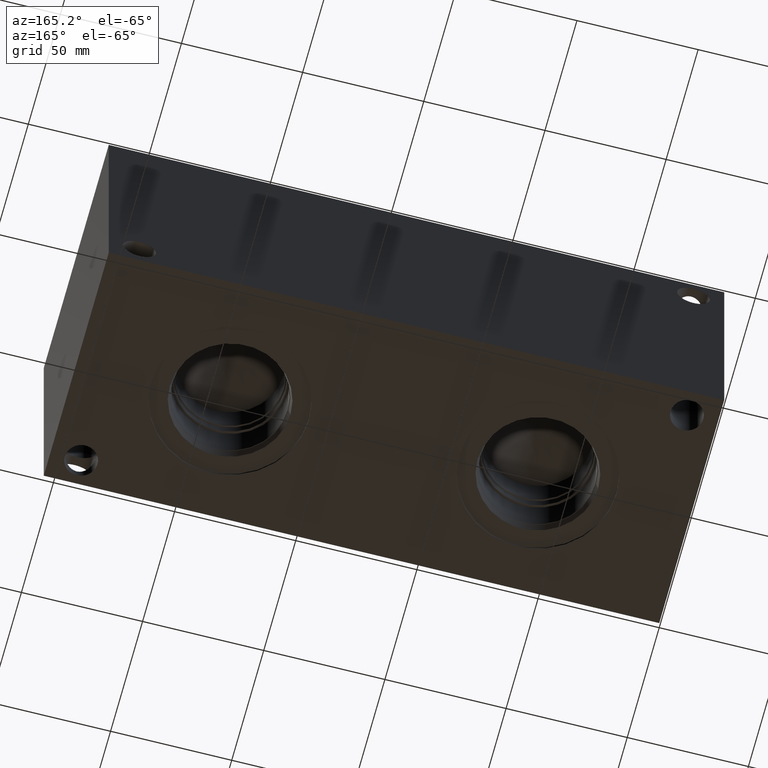
[diagram: clean part render]
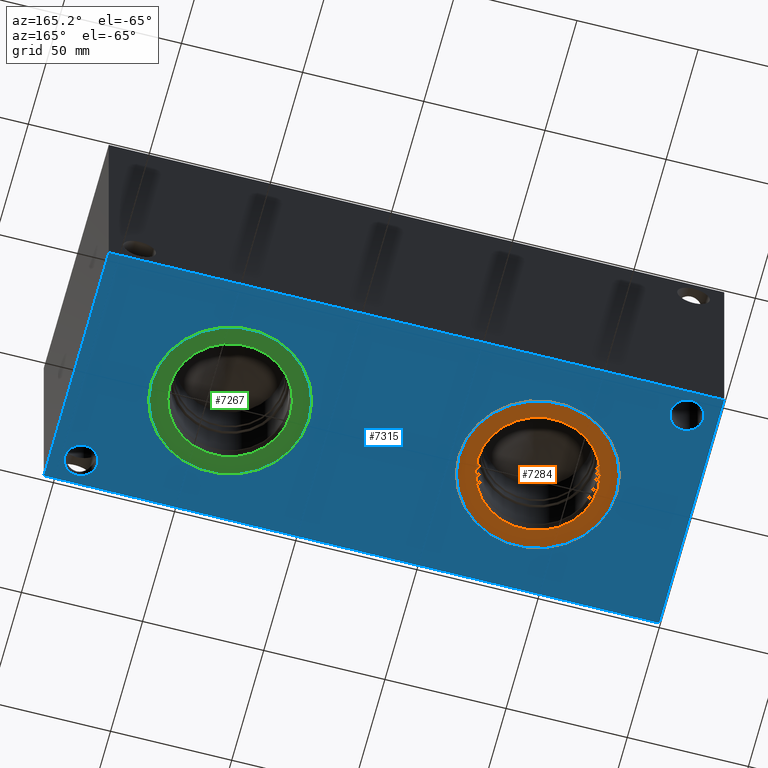
[diagram: same view with three faces highlighted in distinct colors, each labeled with its STEP entity id]
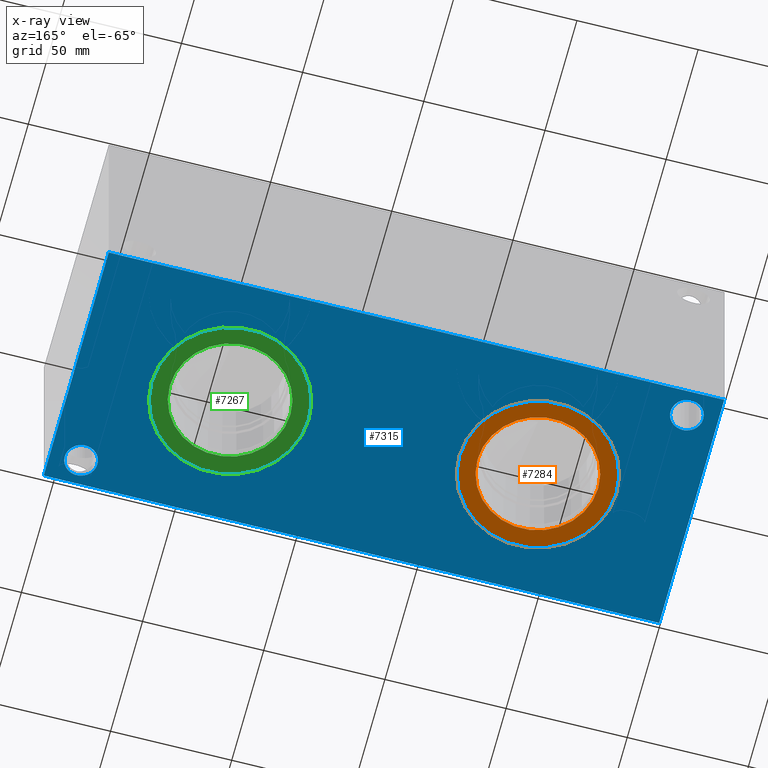
[diagram: x-ray of the same camera — body ghosted, the three highlighted faces saturated]
A machine part, auxiliary view with three faces highlighted in distinct colors.
The next image is the same camera in x-ray (body ghosted, the three faces saturated) — at least one of them is partly hidden behind the body in this view.
Their STEP definitions:

[orange] entity #7284 — the highlighted planar face has unit normal (0, 0, 1).
#112=CIRCLE('',#7627,32.5628);
#113=CIRCLE('',#7628,32.5628);
#114=CIRCLE('',#7630,24.9047);
#115=CIRCLE('',#7631,24.9047);
#188=FACE_BOUND('',#1229,.T.);
#824=FACE_OUTER_BOUND('',#1228,.T.);
#1228=EDGE_LOOP('',(#6246,#6247));
#1229=EDGE_LOOP('',(#6248,#6249));
#3341=VERTEX_POINT('',#12301);
#3342=VERTEX_POINT('',#12303);
#3343=VERTEX_POINT('',#12307);
#3344=VERTEX_POINT('',#12308);
#4325=EDGE_CURVE('',#3341,#3342,#112,.T.);
#4326=EDGE_CURVE('',#3342,#3341,#113,.T.);
#4327=EDGE_CURVE('',#3343,#3344,#114,.T.);
#4328=EDGE_CURVE('',#3344,#3343,#115,.T.);
#6246=ORIENTED_EDGE('',*,*,#4326,.F.);
#6247=ORIENTED_EDGE('',*,*,#4325,.F.);
#6248=ORIENTED_EDGE('',*,*,#4327,.T.);
#6249=ORIENTED_EDGE('',*,*,#4328,.T.);
#6630=PLANE('',#7629);
#7284=ADVANCED_FACE('',(#824,#188),#6630,.F.);
#7627=AXIS2_PLACEMENT_3D('',#12304,#8989,#8990);
#7628=AXIS2_PLACEMENT_3D('',#12305,#8991,#8992);
#7629=AXIS2_PLACEMENT_3D('',#12306,#8993,#8994);
#7630=AXIS2_PLACEMENT_3D('',#12309,#8995,#8996);
#7631=AXIS2_PLACEMENT_3D('',#12310,#8997,#8998);
#8989=DIRECTION('center_axis',(0.,0.,1.));
#8990=DIRECTION('ref_axis',(1.,0.,0.));
#8991=DIRECTION('center_axis',(0.,0.,1.));
#8992=DIRECTION('ref_axis',(1.,0.,0.));
#8993=DIRECTION('center_axis',(0.,0.,1.));
#8994=DIRECTION('ref_axis',(1.,0.,0.));
#8995=DIRECTION('center_axis',(0.,0.,1.));
#8996=DIRECTION('ref_axis',(1.,0.,0.));
#8997=DIRECTION('center_axis',(0.,0.,1.));
#8998=DIRECTION('ref_axis',(1.,0.,0.));
#12301=CARTESIAN_POINT('',(30.9372,50.8,0.7874));
#12303=CARTESIAN_POINT('',(96.0628,50.8,0.7874));
#12304=CARTESIAN_POINT('Origin',(63.5,50.8,0.7874));
#12305=CARTESIAN_POINT('Origin',(63.5,50.8,0.7874));
#12306=CARTESIAN_POINT('Origin',(88.4047,50.8,0.7874));
#12307=CARTESIAN_POINT('',(88.4047,50.8,0.7874));
#12308=CARTESIAN_POINT('',(38.5953,50.8,0.787400000000002));
#12309=CARTESIAN_POINT('Origin',(63.5,50.8,0.7874));
#12310=CARTESIAN_POINT('Origin',(63.5,50.8,0.7874));

[blue] entity #7315 — the highlighted planar face has unit normal (0, 0, 1).
#80=CIRCLE('',#7576,6.7437);
#81=CIRCLE('',#7578,6.7437);
#82=CIRCLE('',#7580,32.5628);
#83=CIRCLE('',#7581,32.5628);
#110=CIRCLE('',#7625,32.5628);
#111=CIRCLE('',#7626,32.5628);
#197=FACE_BOUND('',#1269,.T.);
#198=FACE_BOUND('',#1270,.T.);
#199=FACE_BOUND('',#1271,.T.);
#200=FACE_BOUND('',#1272,.T.);
#855=FACE_OUTER_BOUND('',#1268,.T.);
#1268=EDGE_LOOP('',(#6400,#6401,#6402,#6403));
#1269=EDGE_LOOP('',(#6404));
#1270=EDGE_LOOP('',(#6405));
#1271=EDGE_LOOP('',(#6406,#6407));
#1272=EDGE_LOOP('',(#6408,#6409));
#1986=LINE('',#12438,#2707);
#1989=LINE('',#12443,#2710);
#1991=LINE('',#12447,#2712);
#1993=LINE('',#12450,#2714);
#2707=VECTOR('',#9148,10.);
#2710=VECTOR('',#9153,10.);
#2712=VECTOR('',#9157,10.);
#2714=VECTOR('',#9161,10.);
#3307=VERTEX_POINT('',#12200);
#3308=VERTEX_POINT('',#12204);
#3309=VERTEX_POINT('',#12208);
#3310=VERTEX_POINT('',#12209);
#3339=VERTEX_POINT('',#12297);
#3340=VERTEX_POINT('',#12298);
#3385=VERTEX_POINT('',#12436);
#3386=VERTEX_POINT('',#12437);
#3387=VERTEX_POINT('',#12442);
#3388=VERTEX_POINT('',#12446);
#4277=EDGE_CURVE('',#3307,#3307,#80,.T.);
#4279=EDGE_CURVE('',#3308,#3308,#81,.T.);
#4280=EDGE_CURVE('',#3309,#3310,#82,.T.);
#4281=EDGE_CURVE('',#3310,#3309,#83,.T.);
#4322=EDGE_CURVE('',#3339,#3340,#110,.T.);
#4323=EDGE_CURVE('',#3340,#3339,#111,.T.);
#4388=EDGE_CURVE('',#3385,#3386,#1986,.T.);
#4391=EDGE_CURVE('',#3387,#3385,#1989,.T.);
#4393=EDGE_CURVE('',#3388,#3387,#1991,.T.);
#4395=EDGE_CURVE('',#3386,#3388,#1993,.T.);
#6400=ORIENTED_EDGE('',*,*,#4395,.F.);
#6401=ORIENTED_EDGE('',*,*,#4388,.F.);
#6402=ORIENTED_EDGE('',*,*,#4391,.F.);
#6403=ORIENTED_EDGE('',*,*,#4393,.F.);
#6404=ORIENTED_EDGE('',*,*,#4277,.T.);
#6405=ORIENTED_EDGE('',*,*,#4279,.T.);
#6406=ORIENTED_EDGE('',*,*,#4280,.T.);
#6407=ORIENTED_EDGE('',*,*,#4281,.T.);
#6408=ORIENTED_EDGE('',*,*,#4322,.T.);
#6409=ORIENTED_EDGE('',*,*,#4323,.T.);
#6640=PLANE('',#7700);
#7315=ADVANCED_FACE('',(#855,#197,#198,#199,#200),#6640,.F.);
#7576=AXIS2_PLACEMENT_3D('',#12202,#8871,#8872);
#7578=AXIS2_PLACEMENT_3D('',#12206,#8876,#8877);
#7580=AXIS2_PLACEMENT_3D('',#12210,#8880,#8881);
#7581=AXIS2_PLACEMENT_3D('',#12211,#8882,#8883);
#7625=AXIS2_PLACEMENT_3D('',#12299,#8984,#8985);
#7626=AXIS2_PLACEMENT_3D('',#12300,#8986,#8987);
#7700=AXIS2_PLACEMENT_3D('',#12452,#9164,#9165);
#8871=DIRECTION('center_axis',(0.,0.,1.));
#8872=DIRECTION('ref_axis',(1.,0.,0.));
#8876=DIRECTION('center_axis',(0.,0.,1.));
#8877=DIRECTION('ref_axis',(1.,0.,0.));
#8880=DIRECTION('center_axis',(0.,0.,1.));
#8881=DIRECTION('ref_axis',(1.,0.,0.));
#8882=DIRECTION('center_axis',(0.,0.,1.));
#8883=DIRECTION('ref_axis',(1.,0.,0.));
#8984=DIRECTION('center_axis',(0.,0.,1.));
#8985=DIRECTION('ref_axis',(1.,0.,0.));
#8986=DIRECTION('center_axis',(0.,0.,1.));
#8987=DIRECTION('ref_axis',(1.,0.,0.));
#9148=DIRECTION('',(0.,-1.,0.));
#9153=DIRECTION('',(-1.,0.,0.));
#9157=DIRECTION('',(0.,1.,0.));
#9161=DIRECTION('',(1.,0.,0.));
#9164=DIRECTION('center_axis',(0.,0.,1.));
#9165=DIRECTION('ref_axis',(1.,0.,0.));
#12200=CARTESIAN_POINT('',(234.5563,10.3124,0.));
#12202=CARTESIAN_POINT('Origin',(241.3,10.3124,0.));
#12204=CARTESIAN_POINT('',(5.9563,91.2876,0.));
#12206=CARTESIAN_POINT('Origin',(12.7,91.2876,0.));
#12208=CARTESIAN_POINT('',(223.0628,50.8,0.));
#12209=CARTESIAN_POINT('',(157.9372,50.8,0.));
#12210=CARTESIAN_POINT('Origin',(190.5,50.8,0.));
#12211=CARTESIAN_POINT('Origin',(190.5,50.8,0.));
#12297=CARTESIAN_POINT('',(96.0628,50.8,0.));
#12298=CARTESIAN_POINT('',(30.9372,50.8,0.));
#12299=CARTESIAN_POINT('Origin',(63.5,50.8,0.));
#12300=CARTESIAN_POINT('Origin',(63.5,50.8,0.));
#12436=CARTESIAN_POINT('',(0.,101.6,0.));
#12437=CARTESIAN_POINT('',(0.,0.,0.));
#12438=CARTESIAN_POINT('',(0.,101.6,0.));
#12442=CARTESIAN_POINT('',(254.,101.6,0.));
#12443=CARTESIAN_POINT('',(254.,101.6,0.));
#12446=CARTESIAN_POINT('',(254.,0.,0.));
#12447=CARTESIAN_POINT('',(254.,0.,0.));
#12450=CARTESIAN_POINT('',(0.,0.,0.));
#12452=CARTESIAN_POINT('Origin',(127.,50.8,0.));

[green] entity #7267 — the highlighted planar face has unit normal (0, 0, 1).
#84=CIRCLE('',#7582,32.5628);
#85=CIRCLE('',#7583,32.5628);
#86=CIRCLE('',#7585,24.9047);
#87=CIRCLE('',#7586,24.9047);
#185=FACE_BOUND('',#1209,.T.);
#807=FACE_OUTER_BOUND('',#1208,.T.);
#1208=EDGE_LOOP('',(#6165,#6166));
#1209=EDGE_LOOP('',(#6167,#6168));
#3311=VERTEX_POINT('',#12212);
#3312=VERTEX_POINT('',#12214);
#3313=VERTEX_POINT('',#12218);
#3314=VERTEX_POINT('',#12219);
#4283=EDGE_CURVE('',#3311,#3312,#84,.T.);
#4284=EDGE_CURVE('',#3312,#3311,#85,.T.);
#4285=EDGE_CURVE('',#3313,#3314,#86,.T.);
#4286=EDGE_CURVE('',#3314,#3313,#87,.T.);
#6165=ORIENTED_EDGE('',*,*,#4284,.F.);
#6166=ORIENTED_EDGE('',*,*,#4283,.F.);
#6167=ORIENTED_EDGE('',*,*,#4285,.T.);
#6168=ORIENTED_EDGE('',*,*,#4286,.T.);
#6627=PLANE('',#7584);
#7267=ADVANCED_FACE('',(#807,#185),#6627,.F.);
#7582=AXIS2_PLACEMENT_3D('',#12215,#8885,#8886);
#7583=AXIS2_PLACEMENT_3D('',#12216,#8887,#8888);
#7584=AXIS2_PLACEMENT_3D('',#12217,#8889,#8890);
#7585=AXIS2_PLACEMENT_3D('',#12220,#8891,#8892);
#7586=AXIS2_PLACEMENT_3D('',#12221,#8893,#8894);
#8885=DIRECTION('center_axis',(0.,0.,1.));
#8886=DIRECTION('ref_axis',(1.,0.,0.));
#8887=DIRECTION('center_axis',(0.,0.,1.));
#8888=DIRECTION('ref_axis',(1.,0.,0.));
#8889=DIRECTION('center_axis',(0.,0.,1.));
#8890=DIRECTION('ref_axis',(1.,0.,0.));
#8891=DIRECTION('center_axis',(0.,0.,1.));
#8892=DIRECTION('ref_axis',(1.,0.,0.));
#8893=DIRECTION('center_axis',(0.,0.,1.));
#8894=DIRECTION('ref_axis',(1.,0.,0.));
#12212=CARTESIAN_POINT('',(157.9372,50.8,0.7874));
#12214=CARTESIAN_POINT('',(223.0628,50.8,0.7874));
#12215=CARTESIAN_POINT('Origin',(190.5,50.8,0.7874));
#12216=CARTESIAN_POINT('Origin',(190.5,50.8,0.7874));
#12217=CARTESIAN_POINT('Origin',(215.4047,50.8,0.7874));
#12218=CARTESIAN_POINT('',(215.4047,50.8,0.7874));
#12219=CARTESIAN_POINT('',(165.5953,50.8,0.787399999999996));
#12220=CARTESIAN_POINT('Origin',(190.5,50.8,0.7874));
#12221=CARTESIAN_POINT('Origin',(190.5,50.8,0.7874));